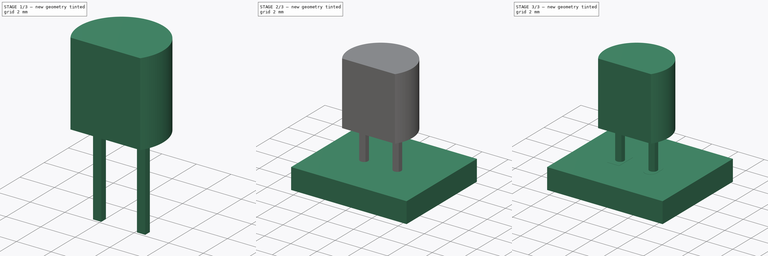
[diagram: build sequence overview — one tinted view per stage of 3, left to right]
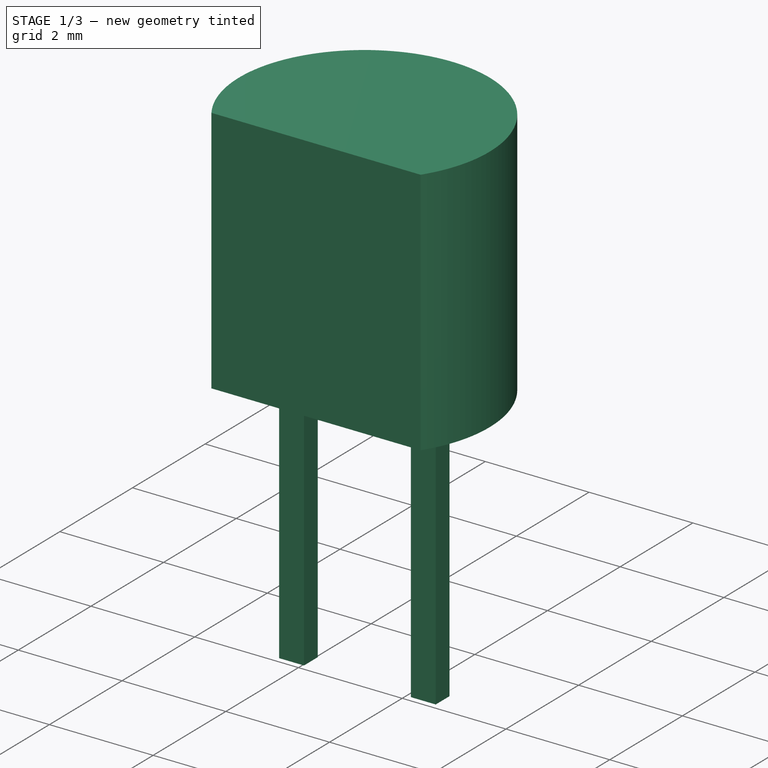
[diagram: stage 1 of 3 — iso view after this stage's code; geometry added in this stage tinted green]
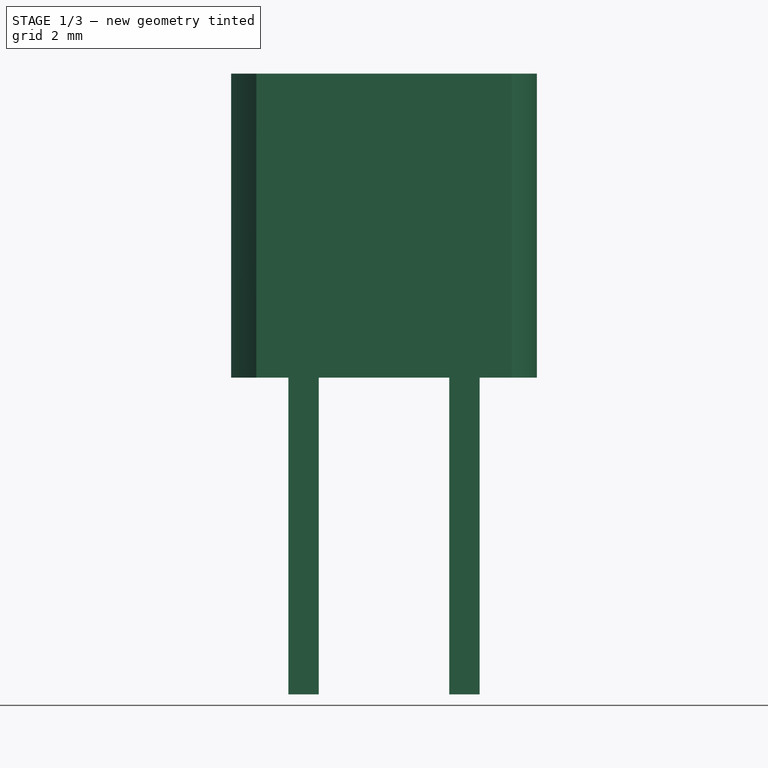
[diagram: stage 1 of 3 — front view after this stage's code; geometry added in this stage tinted green]
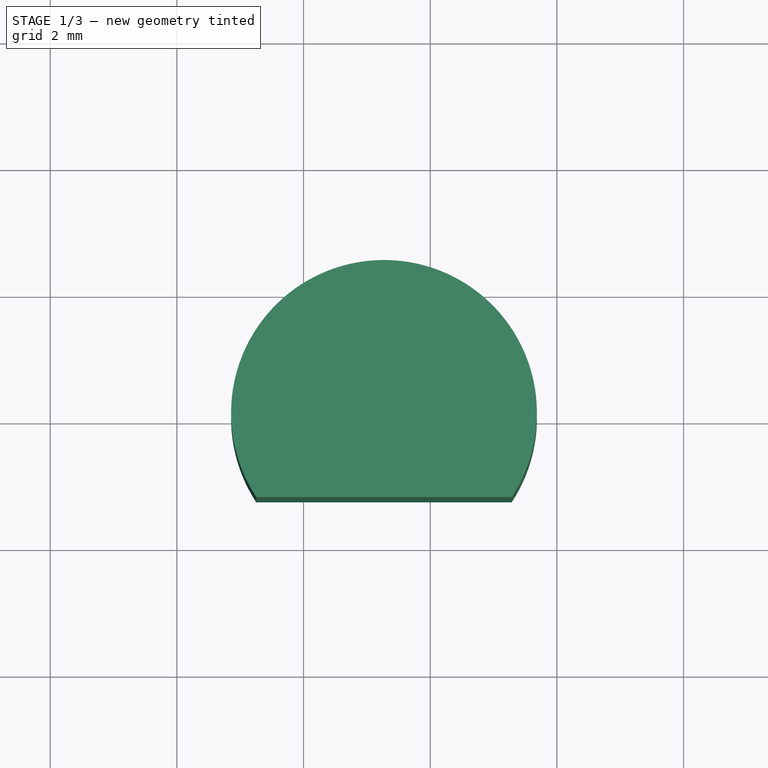
[diagram: stage 1 of 3 — top view after this stage's code; geometry added in this stage tinted green]
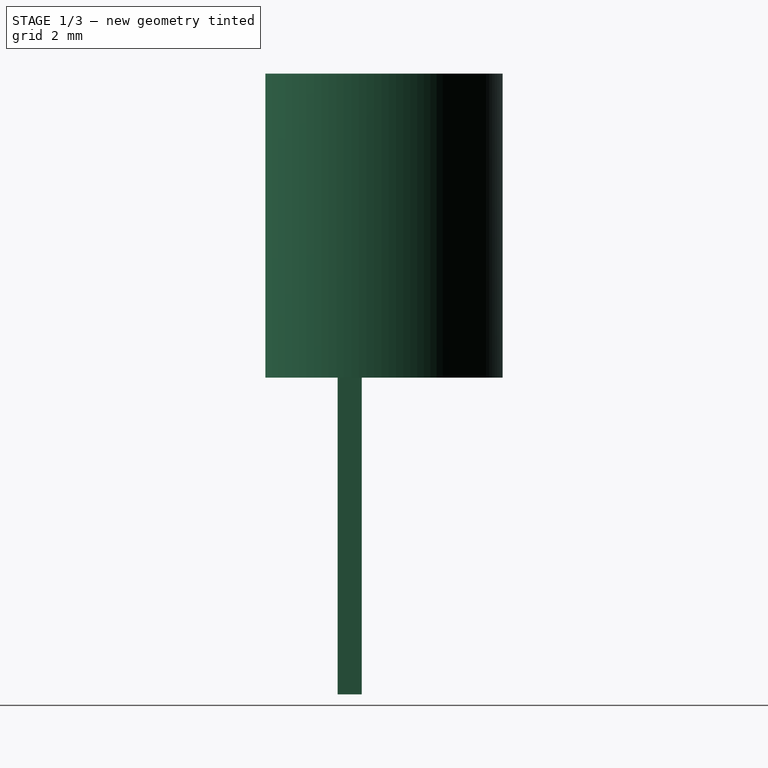
[diagram: stage 1 of 3 — right view after this stage's code; geometry added in this stage tinted green]
FCSTD DOCUMENT  (FreeCAD 0.16R6712 (Git))
Label: TO-92-2_Narrow
License: All rights reserved
LicenseURL: http://en.wikipedia.org/wiki/All_rights_reserved
objects: Part::FeaturePython×7, Part::Feature×3, Sketcher::SketchObject×2, PartDesign::Pad×2, App::DocumentObjectGroup×2, Part::MultiFuse×1
note: 17 computed .brp shape members not serialized (recipe doc carries the construction recipe); baked Part::Feature solids carry a one-line shape summary decoded from their .brp

FEATURE [Sketcher::SketchObject] Sketch
  Placement = pos=(0,0,2.5) rot=(0,0,1;0rad)
  expr: Constraints[8] = 3.68 - 2.35
  expr: Constraints[7] = (5.21 + 4.45) / 4
  sketch-geometry (3):
    g0: LineSegment [constr] StartX=0 StartY=0 StartZ=0 EndX=1.27 EndY=0 EndZ=0
    g1: LineSegment StartX=-0.745769 StartY=-1.33 StartZ=0 EndX=3.28577 EndY=-1.33 EndZ=0
    g2: ArcOfCircle CenterX=1.27 CenterY=0 CenterZ=0 NormalX=0 NormalY=0 NormalZ=1 Radius=2.415 StartAngle=5.69995 EndAngle=10.008
  constraints (9):
    c: Coincident(g0,g-1)
    c: Horizontal(g0)
    c: DistanceX(g0,g0) = 1.27
    c: Horizontal(g1)
    c: Coincident(g2,g0)
    c: Coincident(g2,g1)
    c: Coincident(g2,g1)
    c: Radius(g2) = 2.415
    c: DistanceY(g1,g0) = 1.33
FEATURE [PartDesign::Pad] Pad
  Length = 4.8
  Length2 = 100
  Placement = pos=(0,0,2.5) rot=(0,0,1;0rad)
  Sketch = -> Sketch
  Type = 0
FEATURE [Sketcher::SketchObject] Sketch001
  Placement = pos=(0,0,2.5) rot=(0,0,1;0rad)
  sketch-geometry (9):
    g0: LineSegment StartX=-0.24 StartY=0.19 StartZ=0 EndX=0.24 EndY=0.19 EndZ=0
    g1: LineSegment StartX=0.24 StartY=0.19 StartZ=0 EndX=0.24 EndY=-0.19 EndZ=0
    g2: LineSegment StartX=0.24 StartY=-0.19 StartZ=0 EndX=-0.24 EndY=-0.19 EndZ=0
    g3: LineSegment StartX=-0.24 StartY=-0.19 StartZ=0 EndX=-0.24 EndY=0.19 EndZ=0
    g4: LineSegment [constr] StartX=-0.24 StartY=0 StartZ=0 EndX=0.24 EndY=0 EndZ=0
    g5: LineSegment StartX=2.3 StartY=0.19 StartZ=0 EndX=2.78 EndY=0.19 EndZ=0
    g6: LineSegment StartX=2.78 StartY=0.19 StartZ=0 EndX=2.78 EndY=-0.19 EndZ=0
    g7: LineSegment StartX=2.78 StartY=-0.19 StartZ=0 EndX=2.3 EndY=-0.19 EndZ=0
    g8: LineSegment StartX=2.3 StartY=-0.19 StartZ=0 EndX=2.3 EndY=0.19 EndZ=0
  constraints (28):
    c: Coincident(g0,g1)
    c: Coincident(g1,g2)
    c: Coincident(g2,g3)
    c: Coincident(g3,g0)
    c: Horizontal(g0)
    c: Horizontal(g2)
    c: Vertical(g1)
    c: Vertical(g3)
    c: DistanceX(g0,g0) = 0.48
    c: DistanceY(g1,g1) = 0.38
    c: PointOnObject(g4,g3)
    c: PointOnObject(g4,g1)
    c: Horizontal(g4)
    c: PointOnObject(g-1,g4)
    c: Symmetric(g1,g1,g4)
    c: Symmetric(g4,g4,g-1)
    c: Coincident(g5,g6)
    c: Coincident(g6,g7)
    c: Coincident(g7,g8)
    c: Coincident(g8,g5)
    c: Horizontal(g5)
    c: Horizontal(g7)
    c: Vertical(g6)
    c: Vertical(g8)
    c: Equal(g5,g0)
    c: Equal(g3,g8)
    c: DistanceY(g5,g0) = 0
    c: DistanceX(g0,g5) = 2.54
FEATURE [PartDesign::Pad] Pad001
  Length = 5
  Length2 = 100
  Placement = pos=(0,0,2.5) rot=(0,0,1;0rad)
  Reversed = true
  Sketch = -> Sketch001
  Type = 0
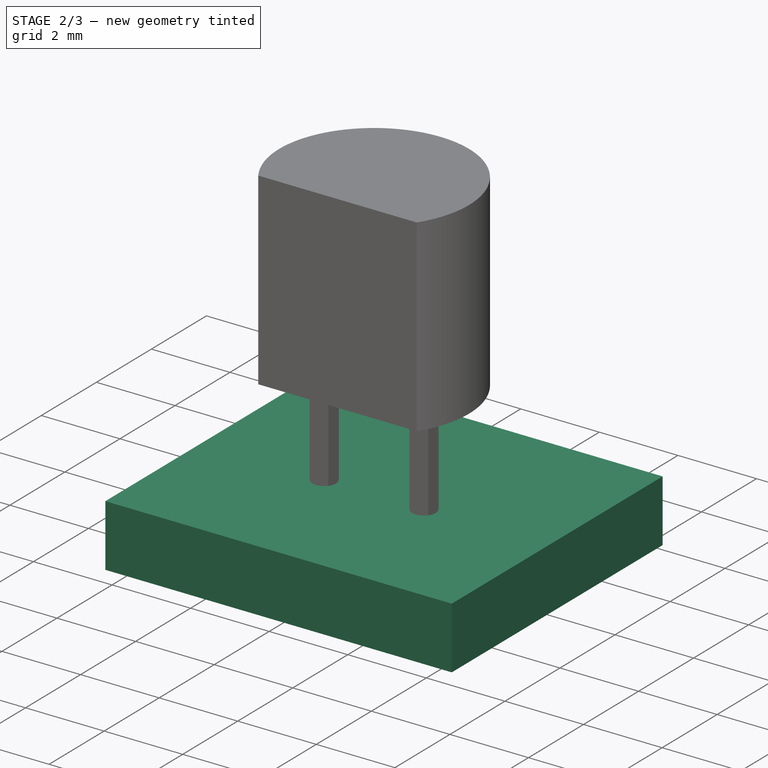
[diagram: stage 2 of 3 — iso view after this stage's code; geometry added in this stage tinted green]
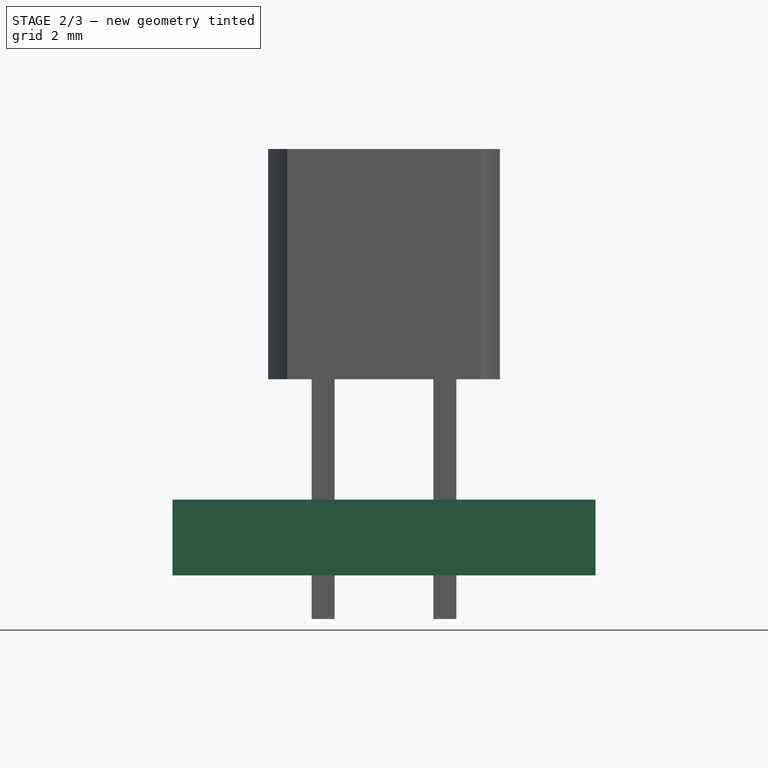
[diagram: stage 2 of 3 — front view after this stage's code; geometry added in this stage tinted green]
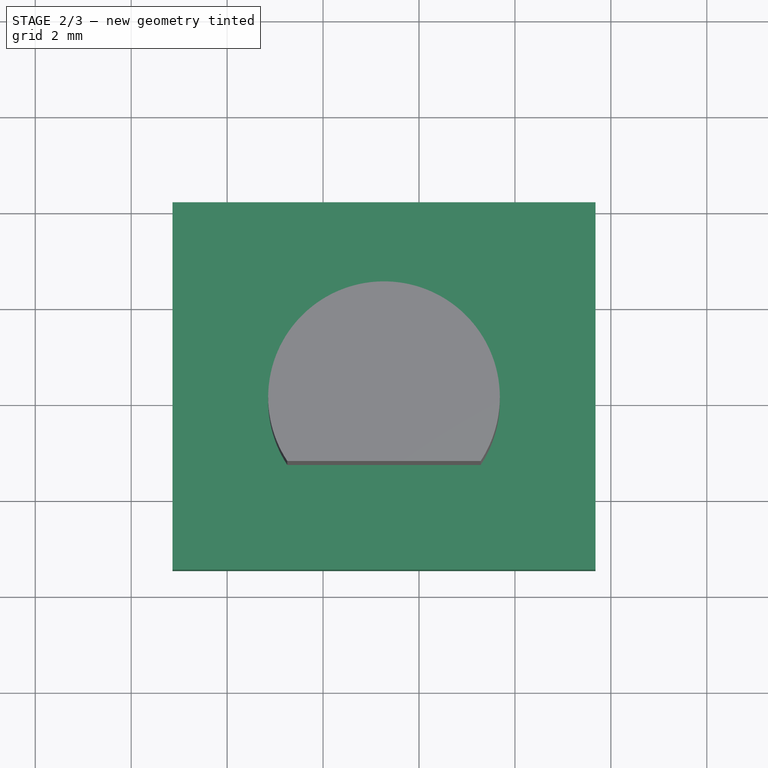
[diagram: stage 2 of 3 — top view after this stage's code; geometry added in this stage tinted green]
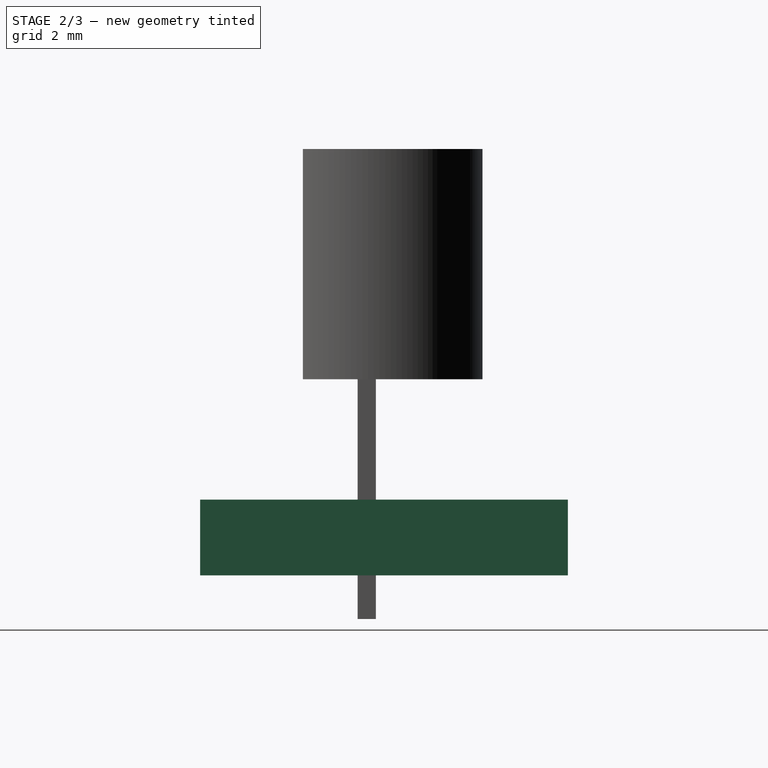
[diagram: stage 2 of 3 — right view after this stage's code; geometry added in this stage tinted green]
FEATURE [Part::FeaturePython] THPs  label="PTHs"  # a2plus imported part (geometry in sourceFile) (typed FeaturePython)
  fixedPosition = true
FEATURE [Part::FeaturePython] newPCB  label="Pcb"  # a2plus imported part (geometry in sourceFile) (typed FeaturePython)
  fixedPosition = true
FEATURE [App::DocumentObjectGroup] TO_92_2pin_Inline_Narrow_Oval_fp
  Group = -> [FCrtYd_lines,FFab_lines,Filk_lines,TopPads,BotPads,THPs,newPCB]
FEATURE [Part::MultiFuse] Pad001_mp_cp  label="TO-92-2_Narrow"
  Shapes = -> [Pad001,Pad]
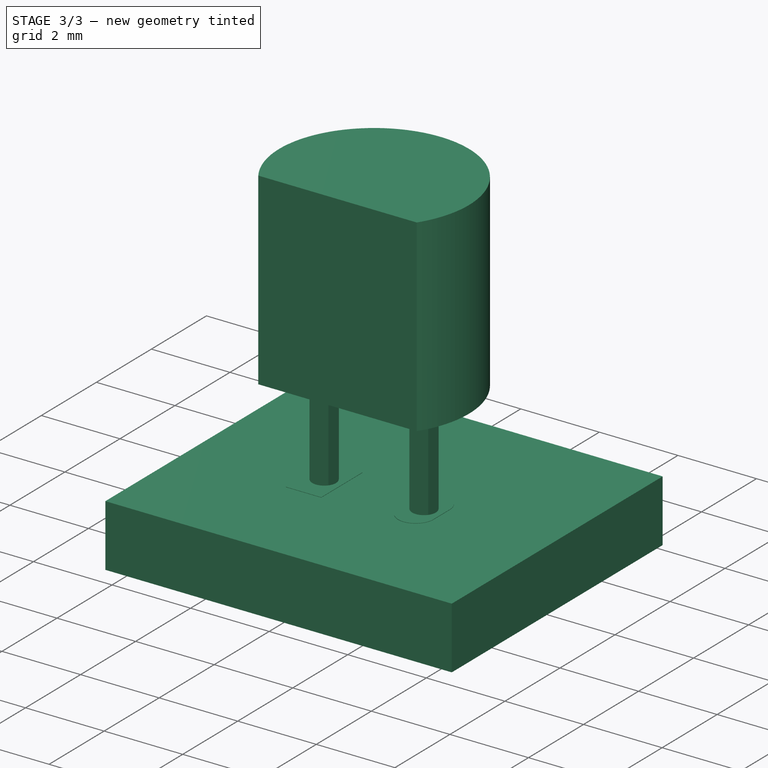
[diagram: stage 3 of 3 — iso view after this stage's code; geometry added in this stage tinted green]
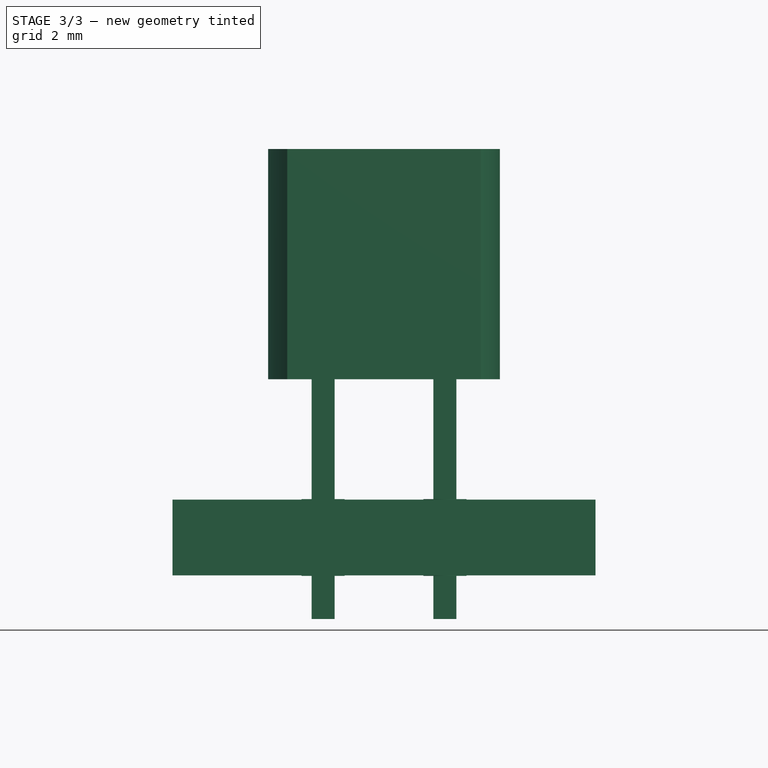
[diagram: stage 3 of 3 — front view after this stage's code; geometry added in this stage tinted green]
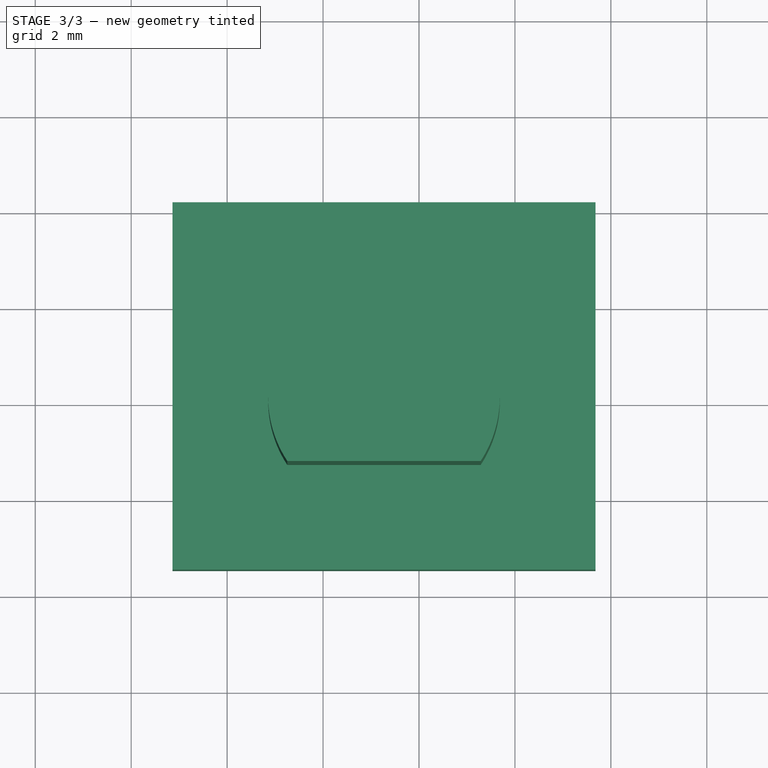
[diagram: stage 3 of 3 — top view after this stage's code; geometry added in this stage tinted green]
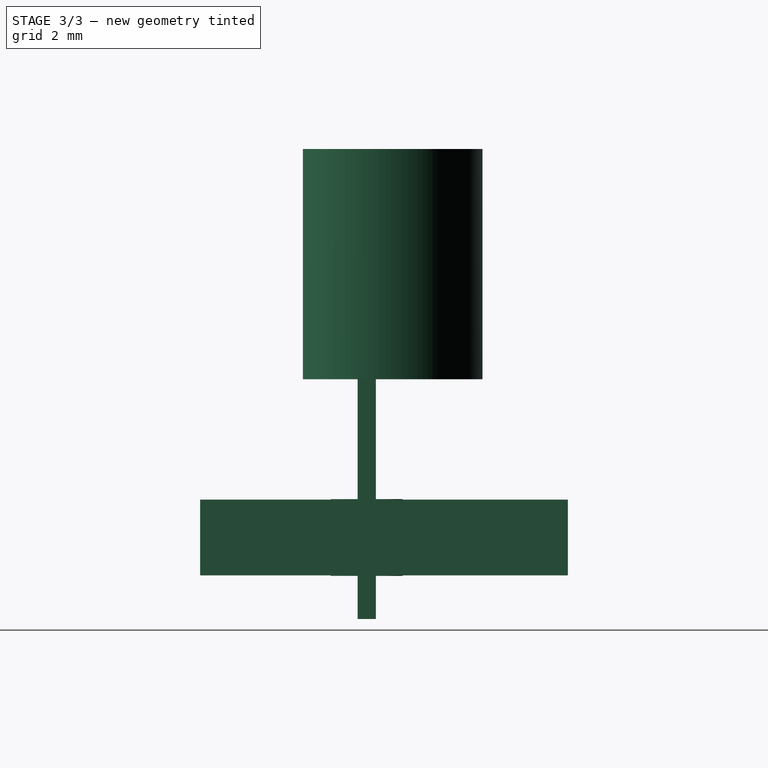
[diagram: stage 3 of 3 — right view after this stage's code; geometry added in this stage tinted green]
FEATURE [Part::Feature] FusionAxisZ1  label="Z"
  shape: bbox 0.8 x 0.8 x 14 mm, 8 faces (baked)
FEATURE [Part::Feature] FusionAxisY1  label="Y"
  Placement = pos=(0,0,0.05) rot=(-1,0,0;1.5708rad)
  shape: bbox 0.8 x 14 x 0.8 mm, 8 faces (baked)
FEATURE [Part::Feature] FusionAxisX1  label="X"
  Placement = pos=(0,-0.05,0) rot=(0,1,0;1.5708rad)
  shape: bbox 14 x 0.8 x 0.8 mm, 8 faces (baked)
FEATURE [App::DocumentObjectGroup] axis
  Group = -> [FusionAxisZ1,FusionAxisY1,FusionAxisX1]
FEATURE [Part::FeaturePython] FCrtYd_lines  label="FCrtYd"  # a2plus imported part (geometry in sourceFile) (typed FeaturePython)
  fixedPosition = true
FEATURE [Part::FeaturePython] FFab_lines  label="FFab"  # a2plus imported part (geometry in sourceFile) (typed FeaturePython)
  fixedPosition = true
FEATURE [Part::FeaturePython] Filk_lines  label="FrontSilk"  # a2plus imported part (geometry in sourceFile) (typed FeaturePython)
  fixedPosition = true
FEATURE [Part::FeaturePython] TopPads  # a2plus imported part (geometry in sourceFile) (typed FeaturePython)
  fixedPosition = true
FEATURE [Part::FeaturePython] BotPads  # a2plus imported part (geometry in sourceFile) (typed FeaturePython)
  fixedPosition = true
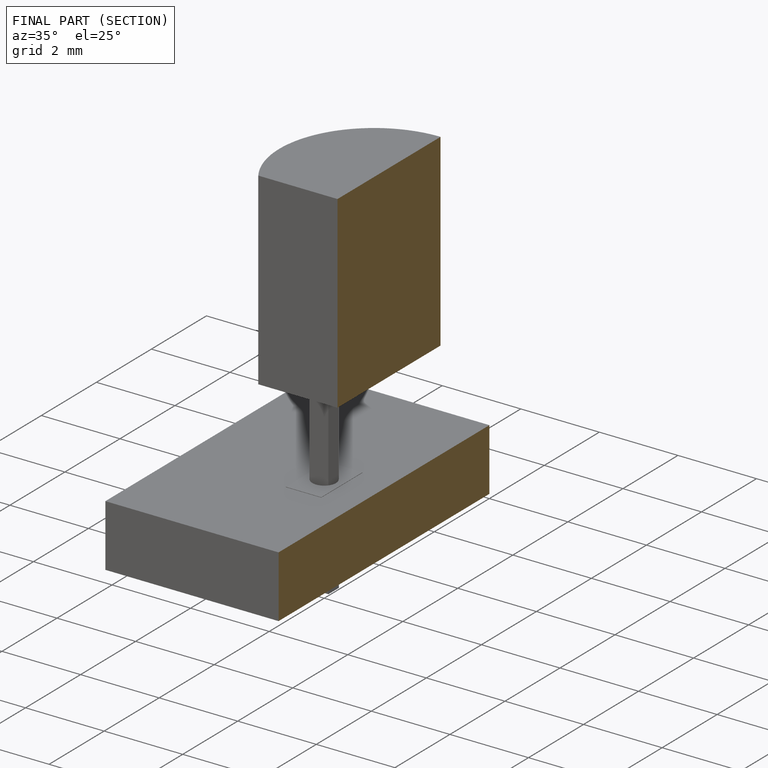
[diagram: finished part — half-section view (interior)]
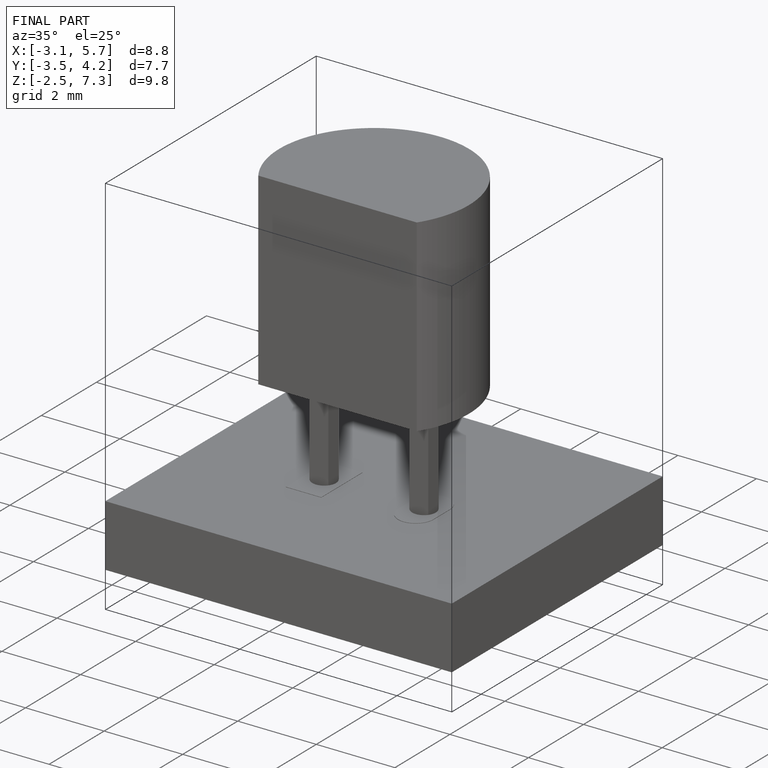
[diagram: finished part — iso view with bounding-box wireframe]
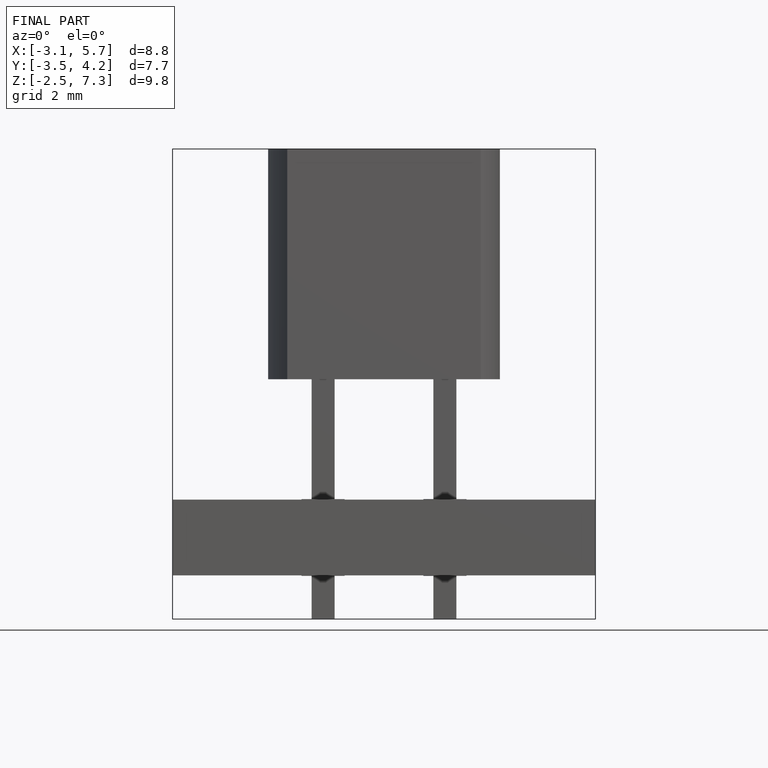
[diagram: finished part — front view with bounding-box wireframe]
